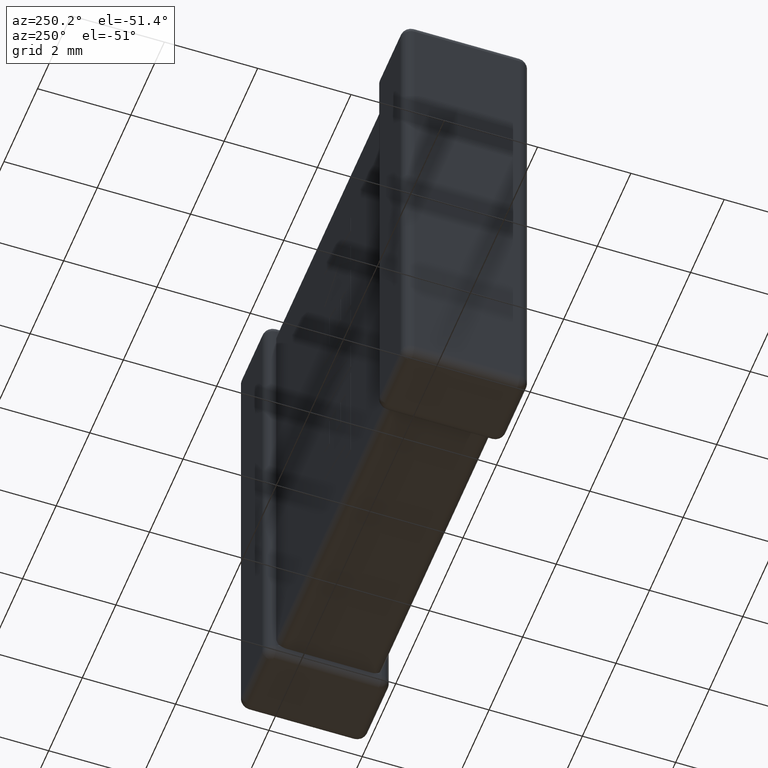
[diagram: clean part render]
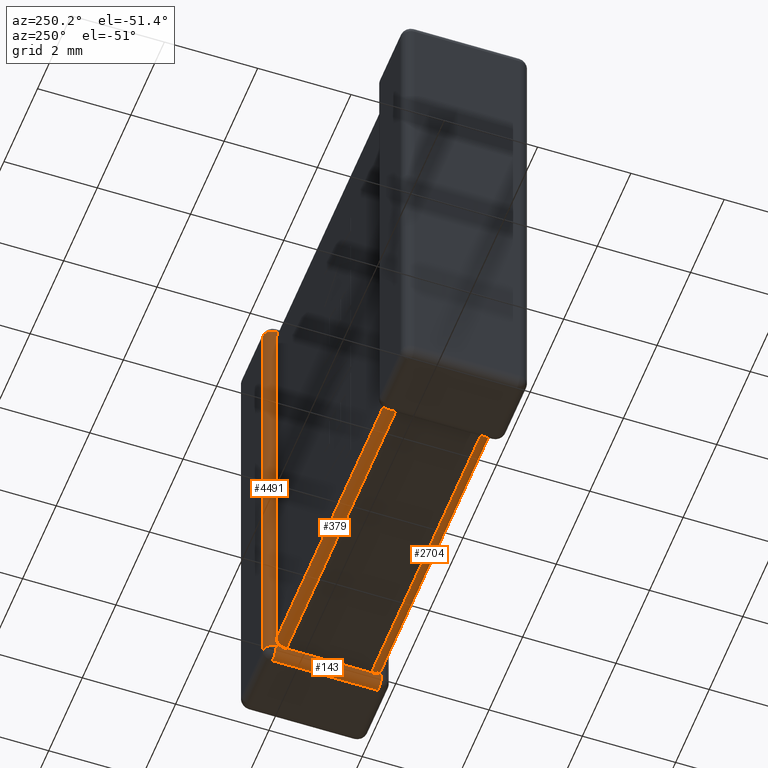
[diagram: same view with one multi-face feature highlighted, each face labeled with its STEP entity id]
A machine part, auxiliary view. The highlighted faces form ONE feature: a constant-radius fillet chain: 4 tangent blend faces with common blend radius 0.2205 mm. The faces share edges in the B-rep.
Their STEP definitions:
[1] entity #379 (Cylinder):
#40 = VERTEX_POINT ( 'NONE', #1055 ) ;
#74 = VECTOR ( 'NONE', #4499, 1000.000000000000000 ) ;
#322 = EDGE_CURVE ( 'NONE', #1423, #4113, #2975, .T. ) ;
#379 = ADVANCED_FACE ( 'NONE', ( #996 ), #953, .T. ) ;
#387 = CARTESIAN_POINT ( 'NONE',  ( 1.660330884344323632, 2.414942903116010786, -10.31494290311600892 ) ) ;
#453 = DIRECTION ( 'NONE',  ( -1.000000000000000000, -0.000000000000000000, -0.000000000000000000 ) ) ;
#480 = EDGE_CURVE ( 'NONE', #3249, #1546, #4109, .T. ) ;
#499 = CARTESIAN_POINT ( 'NONE',  ( 8.239669115655678056, 2.414942903116010342, -10.31494290311600892 ) ) ;
#519 = CARTESIAN_POINT ( 'NONE',  ( 1.669999999999999929, 2.479520000000000390, -10.15903999999999918 ) ) ;
#584 = AXIS2_PLACEMENT_3D ( 'NONE', #640, #590, #2372 ) ;
#590 = DIRECTION ( 'NONE',  ( 1.000000000000000000, 0.000000000000000000, 0.000000000000000000 ) ) ;
#640 = CARTESIAN_POINT ( 'NONE',  ( 1.669999999999999707, 2.259040000000000159, -10.15903999999999918 ) ) ;
#695 = CARTESIAN_POINT ( 'NONE',  ( 8.230000000000000426, 2.317438216622466740, -10.37951999999999941 ) ) ;
#731 = ORIENTED_EDGE ( 'NONE', *, *, #322, .F. ) ;
#906 = CARTESIAN_POINT ( 'NONE',  ( 1.670000000000000373, 2.317396345505158273, -10.37951999999999941 ) ) ;
#953 = CYLINDRICAL_SURFACE ( 'NONE', #584, 0.2204800000000003424 ) ;
#968 = B_SPLINE_CURVE_WITH_KNOTS ( 'NONE', 3,
 ( #2874, #695, #4190, #2094 ),
 .UNSPECIFIED., .F., .F.,
 ( 4, 4 ),
 ( 0.000000000000000000, 0.0001727506452289285523 ),
 .UNSPECIFIED. ) ;
#996 = FACE_OUTER_BOUND ( 'NONE', #2594, .T. ) ;
#1043 = CARTESIAN_POINT ( 'NONE',  ( 1.669999999999999929, 2.479520000000000390, -10.15903999999999918 ) ) ;
#1055 = CARTESIAN_POINT ( 'NONE',  ( 8.230000000000000426, 2.259040000000000159, -10.37951999999999941 ) ) ;
#1233 = CARTESIAN_POINT ( 'NONE',  ( 8.239669115655678056, 2.414942903116010342, -10.31494290311600892 ) ) ;
#1259 = CARTESIAN_POINT ( 'NONE',  ( 8.230000000000000426, 2.479519999999999946, -10.21739634550515952 ) ) ;
#1423 = VERTEX_POINT ( 'NONE', #387 ) ;
#1489 = CARTESIAN_POINT ( 'NONE',  ( 1.669999999999999707, 2.259040000000000159, -10.37951999999999941 ) ) ;
#1546 = VERTEX_POINT ( 'NONE', #3785 ) ;
#2094 = CARTESIAN_POINT ( 'NONE',  ( 8.239669115655678056, 2.414942903116010342, -10.31494290311600892 ) ) ;
#2108 = EDGE_CURVE ( 'NONE', #4113, #40, #3380, .T. ) ;
#2189 = EDGE_CURVE ( 'NONE', #40, #3249, #968, .T. ) ;
#2253 = CARTESIAN_POINT ( 'NONE',  ( 1.672707980145602846, 2.374538074819541489, -10.35534773141247911 ) ) ;
#2349 = ORIENTED_EDGE ( 'NONE', *, *, #2108, .F. ) ;
#2372 = DIRECTION ( 'NONE',  ( 0.000000000000000000, 0.000000000000000000, -1.000000000000000000 ) ) ;
#2396 = B_SPLINE_CURVE_WITH_KNOTS ( 'NONE', 3,
 ( #1043, #4487, #3103, #4182 ),
 .UNSPECIFIED., .F., .F.,
 ( 4, 4 ),
 ( 0.000000000000000000, 0.0001727506452289287420 ),
 .UNSPECIFIED. ) ;
#2594 = EDGE_LOOP ( 'NONE', ( #3530, #3191, #4392, #3221, #2349, #731 ) ) ;
#2716 = CARTESIAN_POINT ( 'NONE',  ( 1.669999999999999707, 2.259040000000000159, -10.37951999999999941 ) ) ;
#2749 = VERTEX_POINT ( 'NONE', #519 ) ;
#2874 = CARTESIAN_POINT ( 'NONE',  ( 8.230000000000000426, 2.259040000000000159, -10.37951999999999941 ) ) ;
#2917 = LINE ( 'NONE', #3991, #4302 ) ;
#2975 = B_SPLINE_CURVE_WITH_KNOTS ( 'NONE', 3,
 ( #4003, #2253, #906, #3320 ),
 .UNSPECIFIED., .F., .F.,
 ( 4, 4 ),
 ( 0.000000000000000000, 0.0001725559479346076169 ),
 .UNSPECIFIED. ) ;
#3021 = CARTESIAN_POINT ( 'NONE',  ( 8.227292019854397509, 2.455347731412479195, -10.27453807481954051 ) ) ;
#3103 = CARTESIAN_POINT ( 'NONE',  ( 1.672710767819503896, 2.455356831723993771, -10.27452897450909930 ) ) ;
#3191 = ORIENTED_EDGE ( 'NONE', *, *, #3217, .F. ) ;
#3217 = EDGE_CURVE ( 'NONE', #1546, #2749, #2917, .T. ) ;
#3221 = ORIENTED_EDGE ( 'NONE', *, *, #2189, .F. ) ;
#3249 = VERTEX_POINT ( 'NONE', #499 ) ;
#3320 = CARTESIAN_POINT ( 'NONE',  ( 1.669999999999999707, 2.259040000000000159, -10.37951999999999941 ) ) ;
#3380 = LINE ( 'NONE', #2716, #74 ) ;
#3530 = ORIENTED_EDGE ( 'NONE', *, *, #3689, .F. ) ;
#3689 = EDGE_CURVE ( 'NONE', #2749, #1423, #2396, .T. ) ;
#3708 = CARTESIAN_POINT ( 'NONE',  ( 8.230000000000000426, 2.479520000000000390, -10.15903999999999918 ) ) ;
#3785 = CARTESIAN_POINT ( 'NONE',  ( 8.230000000000000426, 2.479520000000000390, -10.15903999999999918 ) ) ;
#3991 = CARTESIAN_POINT ( 'NONE',  ( 1.669999999999999929, 2.479520000000000390, -10.15903999999999918 ) ) ;
#4003 = CARTESIAN_POINT ( 'NONE',  ( 1.660330884344323632, 2.414942903116010786, -10.31494290311600892 ) ) ;
#4109 = B_SPLINE_CURVE_WITH_KNOTS ( 'NONE', 3,
 ( #1233, #3021, #1259, #3708 ),
 .UNSPECIFIED., .F., .F.,
 ( 4, 4 ),
 ( 0.000000000000000000, 0.0001725559479346078066 ),
 .UNSPECIFIED. ) ;
#4113 = VERTEX_POINT ( 'NONE', #1489 ) ;
#4182 = CARTESIAN_POINT ( 'NONE',  ( 1.660330884344323632, 2.414942903116010786, -10.31494290311600892 ) ) ;
#4190 = CARTESIAN_POINT ( 'NONE',  ( 8.227289232180497791, 2.374528974509101165, -10.35535683172399324 ) ) ;
#4302 = VECTOR ( 'NONE', #453, 1000.000000000000000 ) ;
#4392 = ORIENTED_EDGE ( 'NONE', *, *, #480, .F. ) ;
#4487 = CARTESIAN_POINT ( 'NONE',  ( 1.669999999999999929, 2.479520000000000390, -10.21743821662246532 ) ) ;
#4499 = DIRECTION ( 'NONE',  ( 1.000000000000000000, 0.000000000000000000, 0.000000000000000000 ) ) ;
[2] entity #143 (Cylinder):
#25 = AXIS2_PLACEMENT_3D ( 'NONE', #323, #2520, #3901 ) ;
#40 = VERTEX_POINT ( 'NONE', #1055 ) ;
#64 = CARTESIAN_POINT ( 'NONE',  ( 8.450480000000000658, 2.479520000000000390, -10.59999999999999964 ) ) ;
#81 = CYLINDRICAL_SURFACE ( 'NONE', #1513, 0.2204800000000003424 ) ;
#143 = ADVANCED_FACE ( 'NONE', ( #2567 ), #81, .T. ) ;
#152 = DIRECTION ( 'NONE',  ( 0.000000000000000000, 0.000000000000000000, 1.000000000000000000 ) ) ;
#167 = ORIENTED_EDGE ( 'NONE', *, *, #2791, .F. ) ;
#176 = CARTESIAN_POINT ( 'NONE',  ( 8.239669115655678056, 0.2850570968839896691, -10.31494290311600892 ) ) ;
#265 = CARTESIAN_POINT ( 'NONE',  ( 8.230000000000000426, 2.479520000000000390, -10.37951999999999941 ) ) ;
#298 = VERTEX_POINT ( 'NONE', #1525 ) ;
#323 = CARTESIAN_POINT ( 'NONE',  ( 8.450480000000000658, 0.2204799999999999538, -10.37951999999999941 ) ) ;
#374 = EDGE_LOOP ( 'NONE', ( #3692, #1202, #3297, #1671, #2773, #3011, #3617, #167 ) ) ;
#485 = LINE ( 'NONE', #3384, #525 ) ;
#499 = CARTESIAN_POINT ( 'NONE',  ( 8.239669115655678056, 2.414942903116010342, -10.31494290311600892 ) ) ;
#525 = VECTOR ( 'NONE', #1566, 1000.000000000000000 ) ;
#541 = EDGE_CURVE ( 'NONE', #298, #4098, #2574, .T. ) ;
#636 = EDGE_CURVE ( 'NONE', #999, #2344, #1550, .T. ) ;
#695 = CARTESIAN_POINT ( 'NONE',  ( 8.230000000000000426, 2.317438216622466740, -10.37951999999999941 ) ) ;
#763 = CARTESIAN_POINT ( 'NONE',  ( 8.230000000000000426, 0.4409599999999990194, -10.37951999999999941 ) ) ;
#807 = DIRECTION ( 'NONE',  ( 0.000000000000000000, 1.000000000000000000, 0.000000000000000000 ) ) ;
#924 = DIRECTION ( 'NONE',  ( -0.000000000000000000, -1.000000000000000000, -0.000000000000000000 ) ) ;
#968 = B_SPLINE_CURVE_WITH_KNOTS ( 'NONE', 3,
 ( #2874, #695, #4190, #2094 ),
 .UNSPECIFIED., .F., .F.,
 ( 4, 4 ),
 ( 0.000000000000000000, 0.0001727506452289285523 ),
 .UNSPECIFIED. ) ;
#997 = CARTESIAN_POINT ( 'NONE',  ( 8.230000000000000426, 0.2204799999999990379, -10.37951999999999941 ) ) ;
#999 = VERTEX_POINT ( 'NONE', #1714 ) ;
#1026 = VERTEX_POINT ( 'NONE', #763 ) ;
#1055 = CARTESIAN_POINT ( 'NONE',  ( 8.230000000000000426, 2.259040000000000159, -10.37951999999999941 ) ) ;
#1062 = CARTESIAN_POINT ( 'NONE',  ( 8.239669115655678056, 2.414942903116010342, -10.31494290311600892 ) ) ;
#1202 = ORIENTED_EDGE ( 'NONE', *, *, #4178, .F. ) ;
#1241 = EDGE_CURVE ( 'NONE', #2344, #1026, #4214, .T. ) ;
#1311 = CARTESIAN_POINT ( 'NONE',  ( 8.233246902157560498, 0.2640918851864371142, -10.33590811481356297 ) ) ;
#1513 = AXIS2_PLACEMENT_3D ( 'NONE', #3965, #807, #152 ) ;
#1525 = CARTESIAN_POINT ( 'NONE',  ( 8.230000000000000426, 2.479520000000000390, -10.37951999999999941 ) ) ;
#1550 =( BOUNDED_CURVE ( )  B_SPLINE_CURVE ( 3, ( #997, #4481, #1311, #4138 ),
 .UNSPECIFIED., .F., .T. ) 
 B_SPLINE_CURVE_WITH_KNOTS ( ( 4, 4 ),
 ( 1.570796326794894560, 1.868047688116102556 ),
 .UNSPECIFIED. ) 
 CURVE ( )  GEOMETRIC_REPRESENTATION_ITEM ( )  RATIONAL_B_SPLINE_CURVE ( ( 1.000000000000000000, 0.9926503465430337458, 0.9926503465430337458, 1.000000000000000000 ) ) 
 REPRESENTATION_ITEM ( '' )  );
#1566 = DIRECTION ( 'NONE',  ( 0.000000000000000000, 1.000000000000000000, 0.000000000000000000 ) ) ;
#1663 = CARTESIAN_POINT ( 'NONE',  ( 8.227292019854397509, 0.3254619251804586333, -10.35534773141247911 ) ) ;
#1671 = ORIENTED_EDGE ( 'NONE', *, *, #636, .T. ) ;
#1698 = CARTESIAN_POINT ( 'NONE',  ( 8.233246902157562275, 2.435908114813562619, -10.33590811481356297 ) ) ;
#1714 = CARTESIAN_POINT ( 'NONE',  ( 8.230000000000000426, 0.2204799999999990379, -10.37951999999999941 ) ) ;
#2017 = LINE ( 'NONE', #3064, #3006 ) ;
#2094 = CARTESIAN_POINT ( 'NONE',  ( 8.239669115655678056, 2.414942903116010342, -10.31494290311600892 ) ) ;
#2189 = EDGE_CURVE ( 'NONE', #40, #3249, #968, .T. ) ;
#2264 = EDGE_CURVE ( 'NONE', #999, #3636, #3512, .T. ) ;
#2311 = DIRECTION ( 'NONE',  ( -0.000000000000000000, 1.000000000000000000, -0.000000000000000000 ) ) ;
#2314 = CARTESIAN_POINT ( 'NONE',  ( 8.450480000000000658, 2.479520000000000390, -10.37951999999999941 ) ) ;
#2344 = VERTEX_POINT ( 'NONE', #3676 ) ;
#2520 = DIRECTION ( 'NONE',  ( -0.000000000000000000, -1.000000000000000000, -0.000000000000000000 ) ) ;
#2567 = FACE_OUTER_BOUND ( 'NONE', #374, .T. ) ;
#2574 = CIRCLE ( 'NONE', #3757, 0.2204800000000003424 ) ;
#2773 = ORIENTED_EDGE ( 'NONE', *, *, #1241, .T. ) ;
#2774 = CARTESIAN_POINT ( 'NONE',  ( 8.450480000000000658, 0.2204799999999999538, -10.59999999999999964 ) ) ;
#2791 = EDGE_CURVE ( 'NONE', #298, #3249, #2814, .T. ) ;
#2814 =( BOUNDED_CURVE ( )  B_SPLINE_CURVE ( 3, ( #265, #2985, #1698, #1062 ),
 .UNSPECIFIED., .F., .T. ) 
 B_SPLINE_CURVE_WITH_KNOTS ( ( 4, 4 ),
 ( 1.570796326794896558, 1.868047688116103444 ),
 .UNSPECIFIED. ) 
 CURVE ( )  GEOMETRIC_REPRESENTATION_ITEM ( )  RATIONAL_B_SPLINE_CURVE ( ( 1.000000000000000000, 0.9926503465430338569, 0.9926503465430338569, 1.000000000000000000 ) ) 
 REPRESENTATION_ITEM ( '' )  );
#2874 = CARTESIAN_POINT ( 'NONE',  ( 8.230000000000000426, 2.259040000000000159, -10.37951999999999941 ) ) ;
#2985 = CARTESIAN_POINT ( 'NONE',  ( 8.230000000000000426, 2.457593191574271696, -10.35759319157427427 ) ) ;
#3006 = VECTOR ( 'NONE', #2311, 1000.000000000000000 ) ;
#3011 = ORIENTED_EDGE ( 'NONE', *, *, #3345, .T. ) ;
#3064 = CARTESIAN_POINT ( 'NONE',  ( 8.230000000000000426, 0.000000000000000000, -10.37951999999999941 ) ) ;
#3088 = CARTESIAN_POINT ( 'NONE',  ( 8.230000000000000426, 0.3826036544948412943, -10.37951999999999941 ) ) ;
#3249 = VERTEX_POINT ( 'NONE', #499 ) ;
#3297 = ORIENTED_EDGE ( 'NONE', *, *, #2264, .F. ) ;
#3336 = DIRECTION ( 'NONE',  ( 0.000000000000000000, 0.000000000000000000, 1.000000000000000000 ) ) ;
#3345 = EDGE_CURVE ( 'NONE', #1026, #40, #2017, .T. ) ;
#3384 = CARTESIAN_POINT ( 'NONE',  ( 8.450480000000000658, 0.000000000000000000, -10.59999999999999964 ) ) ;
#3512 = CIRCLE ( 'NONE', #25, 0.2204800000000003424 ) ;
#3617 = ORIENTED_EDGE ( 'NONE', *, *, #2189, .T. ) ;
#3636 = VERTEX_POINT ( 'NONE', #2774 ) ;
#3676 = CARTESIAN_POINT ( 'NONE',  ( 8.239669115655678056, 0.2850570968839896691, -10.31494290311600892 ) ) ;
#3692 = ORIENTED_EDGE ( 'NONE', *, *, #541, .T. ) ;
#3757 = AXIS2_PLACEMENT_3D ( 'NONE', #2314, #924, #3336 ) ;
#3901 = DIRECTION ( 'NONE',  ( 0.000000000000000000, 0.000000000000000000, -1.000000000000000000 ) ) ;
#3965 = CARTESIAN_POINT ( 'NONE',  ( 8.450480000000000658, 0.000000000000000000, -10.37951999999999941 ) ) ;
#4098 = VERTEX_POINT ( 'NONE', #64 ) ;
#4138 = CARTESIAN_POINT ( 'NONE',  ( 8.239669115655678056, 0.2850570968839896691, -10.31494290311600892 ) ) ;
#4178 = EDGE_CURVE ( 'NONE', #3636, #4098, #485, .T. ) ;
#4190 = CARTESIAN_POINT ( 'NONE',  ( 8.227289232180497791, 2.374528974509101165, -10.35535683172399324 ) ) ;
#4214 = B_SPLINE_CURVE_WITH_KNOTS ( 'NONE', 3,
 ( #176, #1663, #3088, #4473 ),
 .UNSPECIFIED., .F., .F.,
 ( 4, 4 ),
 ( 0.000000000000000000, 0.0001725559479346070206 ),
 .UNSPECIFIED. ) ;
#4473 = CARTESIAN_POINT ( 'NONE',  ( 8.230000000000000426, 0.4409599999999990194, -10.37951999999999941 ) ) ;
#4481 = CARTESIAN_POINT ( 'NONE',  ( 8.230000000000000426, 0.2424068084257280653, -10.35759319157427072 ) ) ;
[3] entity #2704 (Cylinder):
#176 = CARTESIAN_POINT ( 'NONE',  ( 8.239669115655678056, 0.2850570968839896691, -10.31494290311600892 ) ) ;
#391 = ORIENTED_EDGE ( 'NONE', *, *, #1589, .F. ) ;
#442 = VECTOR ( 'NONE', #4153, 1000.000000000000000 ) ;
#455 = EDGE_CURVE ( 'NONE', #655, #3913, #593, .T. ) ;
#494 = ORIENTED_EDGE ( 'NONE', *, *, #1842, .F. ) ;
#498 = CARTESIAN_POINT ( 'NONE',  ( 8.230000000000000426, 0.2204799999999990379, -10.15903999999999918 ) ) ;
#593 = B_SPLINE_CURVE_WITH_KNOTS ( 'NONE', 3,
 ( #1334, #4156, #3823, #659 ),
 .UNSPECIFIED., .F., .F.,
 ( 4, 4 ),
 ( 0.000000000000000000, 0.0001725559479346051774 ),
 .UNSPECIFIED. ) ;
#655 = VERTEX_POINT ( 'NONE', #3528 ) ;
#659 = CARTESIAN_POINT ( 'NONE',  ( 1.669999999999999929, 0.2204799999999990379, -10.15903999999999918 ) ) ;
#739 = CARTESIAN_POINT ( 'NONE',  ( 8.230000000000000426, 0.2204799999999990379, -10.15903999999999918 ) ) ;
#763 = CARTESIAN_POINT ( 'NONE',  ( 8.230000000000000426, 0.4409599999999990194, -10.37951999999999941 ) ) ;
#771 = AXIS2_PLACEMENT_3D ( 'NONE', #862, #4463, #4095 ) ;
#862 = CARTESIAN_POINT ( 'NONE',  ( 1.669999999999999929, 0.4409599999999990194, -10.15903999999999918 ) ) ;
#1026 = VERTEX_POINT ( 'NONE', #763 ) ;
#1076 = B_SPLINE_CURVE_WITH_KNOTS ( 'NONE', 3,
 ( #3701, #1557, #4366, #2309 ),
 .UNSPECIFIED., .F., .F.,
 ( 4, 4 ),
 ( 0.000000000000000000, 0.0001727506452289311544 ),
 .UNSPECIFIED. ) ;
#1102 = ORIENTED_EDGE ( 'NONE', *, *, #1241, .F. ) ;
#1154 = CYLINDRICAL_SURFACE ( 'NONE', #771, 0.2204800000000003424 ) ;
#1241 = EDGE_CURVE ( 'NONE', #2344, #1026, #4214, .T. ) ;
#1334 = CARTESIAN_POINT ( 'NONE',  ( 1.660330884344325408, 0.2850570968839872266, -10.31494290311600714 ) ) ;
#1411 = EDGE_CURVE ( 'NONE', #3913, #2804, #1774, .T. ) ;
#1486 = ORIENTED_EDGE ( 'NONE', *, *, #1411, .F. ) ;
#1503 = B_SPLINE_CURVE_WITH_KNOTS ( 'NONE', 3,
 ( #498, #2236, #1509, #2541 ),
 .UNSPECIFIED., .F., .F.,
 ( 4, 4 ),
 ( 0.000000000000000000, 0.0001727506452289290673 ),
 .UNSPECIFIED. ) ;
#1509 = CARTESIAN_POINT ( 'NONE',  ( 8.227289232180497791, 0.2446431682760057125, -10.27452897450909930 ) ) ;
#1557 = CARTESIAN_POINT ( 'NONE',  ( 1.669999999999999707, 0.3825617833775318832, -10.37951999999999941 ) ) ;
#1589 = EDGE_CURVE ( 'NONE', #3754, #655, #1076, .T. ) ;
#1663 = CARTESIAN_POINT ( 'NONE',  ( 8.227292019854397509, 0.3254619251804586333, -10.35534773141247911 ) ) ;
#1720 = ORIENTED_EDGE ( 'NONE', *, *, #455, .F. ) ;
#1774 = LINE ( 'NONE', #739, #4263 ) ;
#1842 = EDGE_CURVE ( 'NONE', #1026, #3754, #3119, .T. ) ;
#2236 = CARTESIAN_POINT ( 'NONE',  ( 8.230000000000000426, 0.2204799999999990379, -10.21743821662246532 ) ) ;
#2309 = CARTESIAN_POINT ( 'NONE',  ( 1.660330884344325408, 0.2850570968839872266, -10.31494290311600714 ) ) ;
#2344 = VERTEX_POINT ( 'NONE', #3676 ) ;
#2416 = EDGE_CURVE ( 'NONE', #2804, #2344, #1503, .T. ) ;
#2541 = CARTESIAN_POINT ( 'NONE',  ( 8.239669115655678056, 0.2850570968839896691, -10.31494290311600892 ) ) ;
#2605 = EDGE_LOOP ( 'NONE', ( #391, #494, #1102, #2693, #1486, #1720 ) ) ;
#2693 = ORIENTED_EDGE ( 'NONE', *, *, #2416, .F. ) ;
#2704 = ADVANCED_FACE ( 'NONE', ( #2937 ), #1154, .T. ) ;
#2804 = VERTEX_POINT ( 'NONE', #4223 ) ;
#2937 = FACE_OUTER_BOUND ( 'NONE', #2605, .T. ) ;
#3088 = CARTESIAN_POINT ( 'NONE',  ( 8.230000000000000426, 0.3826036544948412943, -10.37951999999999941 ) ) ;
#3119 = LINE ( 'NONE', #4505, #442 ) ;
#3528 = CARTESIAN_POINT ( 'NONE',  ( 1.660330884344325408, 0.2850570968839872266, -10.31494290311600714 ) ) ;
#3561 = DIRECTION ( 'NONE',  ( 1.000000000000000000, 0.000000000000000000, -0.000000000000000000 ) ) ;
#3676 = CARTESIAN_POINT ( 'NONE',  ( 8.239669115655678056, 0.2850570968839896691, -10.31494290311600892 ) ) ;
#3701 = CARTESIAN_POINT ( 'NONE',  ( 1.669999999999999707, 0.4409599999999990194, -10.37951999999999941 ) ) ;
#3754 = VERTEX_POINT ( 'NONE', #3936 ) ;
#3823 = CARTESIAN_POINT ( 'NONE',  ( 1.670000000000000817, 0.2204799999999995097, -10.21739634550515774 ) ) ;
#3848 = CARTESIAN_POINT ( 'NONE',  ( 1.669999999999999929, 0.2204799999999990379, -10.15903999999999918 ) ) ;
#3913 = VERTEX_POINT ( 'NONE', #3848 ) ;
#3936 = CARTESIAN_POINT ( 'NONE',  ( 1.669999999999999707, 0.4409599999999990194, -10.37951999999999941 ) ) ;
#4095 = DIRECTION ( 'NONE',  ( 0.000000000000000000, 0.000000000000000000, 1.000000000000000000 ) ) ;
#4153 = DIRECTION ( 'NONE',  ( -1.000000000000000000, 0.000000000000000000, -0.000000000000000000 ) ) ;
#4156 = CARTESIAN_POINT ( 'NONE',  ( 1.672707980145603734, 0.2446522685875190117, -10.27453807481953874 ) ) ;
#4214 = B_SPLINE_CURVE_WITH_KNOTS ( 'NONE', 3,
 ( #176, #1663, #3088, #4473 ),
 .UNSPECIFIED., .F., .F.,
 ( 4, 4 ),
 ( 0.000000000000000000, 0.0001725559479346070206 ),
 .UNSPECIFIED. ) ;
#4223 = CARTESIAN_POINT ( 'NONE',  ( 8.230000000000000426, 0.2204799999999990379, -10.15903999999999918 ) ) ;
#4263 = VECTOR ( 'NONE', #3561, 1000.000000000000000 ) ;
#4366 = CARTESIAN_POINT ( 'NONE',  ( 1.672710767819506783, 0.3254710254908962930, -10.35535683172399146 ) ) ;
#4463 = DIRECTION ( 'NONE',  ( -1.000000000000000000, 0.000000000000000000, 0.000000000000000000 ) ) ;
#4473 = CARTESIAN_POINT ( 'NONE',  ( 8.230000000000000426, 0.4409599999999990194, -10.37951999999999941 ) ) ;
#4505 = CARTESIAN_POINT ( 'NONE',  ( 1.669999999999999929, 0.4409599999999990194, -10.37951999999999941 ) ) ;
[4] entity #4491 (Cylinder):
#93 = DIRECTION ( 'NONE',  ( -1.598175372177922995E-15, 0.000000000000000000, 1.000000000000000000 ) ) ;
#159 = DIRECTION ( 'NONE',  ( -1.000000000000000000, 0.000000000000000000, 0.000000000000000000 ) ) ;
#177 = CARTESIAN_POINT ( 'NONE',  ( 8.230000000000000426, 2.479520000000000390, -10.59999999999999964 ) ) ;
#181 = EDGE_LOOP ( 'NONE', ( #2647, #3545, #4456, #1878, #3406, #2470, #3198, #1683 ) ) ;
#187 = B_SPLINE_CURVE_WITH_KNOTS ( 'NONE', 3,
 ( #271, #196, #4471, #4052 ),
 .UNSPECIFIED., .F., .F.,
 ( 4, 4 ),
 ( 0.000000000000000000, 0.0001727506452289285252 ),
 .UNSPECIFIED. ) ;
#196 = CARTESIAN_POINT ( 'NONE',  ( 8.230000000000000426, 2.479520000000000390, -0.3825617833775343257 ) ) ;
#265 = CARTESIAN_POINT ( 'NONE',  ( 8.230000000000000426, 2.479520000000000390, -10.37951999999999941 ) ) ;
#271 = CARTESIAN_POINT ( 'NONE',  ( 8.230000000000000426, 2.479520000000000390, -0.4409600000000006848 ) ) ;
#289 = CARTESIAN_POINT ( 'NONE',  ( 8.230000000000000426, 2.479520000000000390, -0.2204800000000003424 ) ) ;
#298 = VERTEX_POINT ( 'NONE', #1525 ) ;
#337 = CARTESIAN_POINT ( 'NONE',  ( 8.450480000000000658, 2.479520000000000390, 0.000000000000000000 ) ) ;
#480 = EDGE_CURVE ( 'NONE', #3249, #1546, #4109, .T. ) ;
#499 = CARTESIAN_POINT ( 'NONE',  ( 8.239669115655678056, 2.414942903116010342, -10.31494290311600892 ) ) ;
#502 = AXIS2_PLACEMENT_3D ( 'NONE', #2202, #3613, #159 ) ;
#747 = EDGE_CURVE ( 'NONE', #298, #3192, #2506, .T. ) ;
#792 = CARTESIAN_POINT ( 'NONE',  ( 8.230000000000000426, 2.479520000000000390, -0.2204800000000003424 ) ) ;
#1062 = CARTESIAN_POINT ( 'NONE',  ( 8.239669115655678056, 2.414942903116010342, -10.31494290311600892 ) ) ;
#1071 = CARTESIAN_POINT ( 'NONE',  ( 8.450480000000000658, 2.700000000000000178, -0.2204799999999999816 ) ) ;
#1204 = CYLINDRICAL_SURFACE ( 'NONE', #2378, 0.2204800000000003424 ) ;
#1233 = CARTESIAN_POINT ( 'NONE',  ( 8.239669115655678056, 2.414942903116010342, -10.31494290311600892 ) ) ;
#1259 = CARTESIAN_POINT ( 'NONE',  ( 8.230000000000000426, 2.479519999999999946, -10.21739634550515952 ) ) ;
#1387 = VERTEX_POINT ( 'NONE', #4211 ) ;
#1389 = CARTESIAN_POINT ( 'NONE',  ( 8.233246902157562275, 2.435908114813562619, -0.2640918851864377803 ) ) ;
#1476 = LINE ( 'NONE', #1500, #4382 ) ;
#1500 = CARTESIAN_POINT ( 'NONE',  ( 8.450480000000000658, 2.700000000000000178, 0.000000000000000000 ) ) ;
#1525 = CARTESIAN_POINT ( 'NONE',  ( 8.230000000000000426, 2.479520000000000390, -10.37951999999999941 ) ) ;
#1546 = VERTEX_POINT ( 'NONE', #3785 ) ;
#1683 = ORIENTED_EDGE ( 'NONE', *, *, #3716, .F. ) ;
#1698 = CARTESIAN_POINT ( 'NONE',  ( 8.233246902157562275, 2.435908114813562619, -10.33590811481356297 ) ) ;
#1722 = DIRECTION ( 'NONE',  ( -0.000000000000000000, 0.000000000000000000, 1.000000000000000000 ) ) ;
#1812 = AXIS2_PLACEMENT_3D ( 'NONE', #2961, #93, #3621 ) ;
#1878 = ORIENTED_EDGE ( 'NONE', *, *, #2791, .T. ) ;
#2028 = EDGE_CURVE ( 'NONE', #1546, #2794, #2263, .T. ) ;
#2092 = VECTOR ( 'NONE', #4285, 1000.000000000000000 ) ;
#2202 = CARTESIAN_POINT ( 'NONE',  ( 8.450480000000000658, 2.479520000000000390, -10.37951999999999941 ) ) ;
#2233 = DIRECTION ( 'NONE',  ( -0.000000000000000000, 0.000000000000000000, 1.000000000000000000 ) ) ;
#2256 = CIRCLE ( 'NONE', #1812, 0.2204800000000003424 ) ;
#2263 = LINE ( 'NONE', #177, #2092 ) ;
#2378 = AXIS2_PLACEMENT_3D ( 'NONE', #337, #1722, #3131 ) ;
#2464 = CARTESIAN_POINT ( 'NONE',  ( 8.239669115655678056, 2.414942903116010342, -0.2850570968839904462 ) ) ;
#2470 = ORIENTED_EDGE ( 'NONE', *, *, #2028, .T. ) ;
#2506 = CIRCLE ( 'NONE', #502, 0.2204800000000003424 ) ;
#2647 = ORIENTED_EDGE ( 'NONE', *, *, #2666, .F. ) ;
#2666 = EDGE_CURVE ( 'NONE', #4289, #4108, #2256, .T. ) ;
#2695 = EDGE_CURVE ( 'NONE', #3192, #4289, #1476, .T. ) ;
#2730 =( BOUNDED_CURVE ( )  B_SPLINE_CURVE ( 3, ( #289, #4162, #1389, #2464 ),
 .UNSPECIFIED., .F., .T. ) 
 B_SPLINE_CURVE_WITH_KNOTS ( ( 4, 4 ),
 ( 1.570796326794896558, 1.868047688116103444 ),
 .UNSPECIFIED. ) 
 CURVE ( )  GEOMETRIC_REPRESENTATION_ITEM ( )  RATIONAL_B_SPLINE_CURVE ( ( 1.000000000000000000, 0.9926503465430338569, 0.9926503465430338569, 1.000000000000000000 ) ) 
 REPRESENTATION_ITEM ( '' )  );
#2791 = EDGE_CURVE ( 'NONE', #298, #3249, #2814, .T. ) ;
#2794 = VERTEX_POINT ( 'NONE', #3828 ) ;
#2814 =( BOUNDED_CURVE ( )  B_SPLINE_CURVE ( 3, ( #265, #2985, #1698, #1062 ),
 .UNSPECIFIED., .F., .T. ) 
 B_SPLINE_CURVE_WITH_KNOTS ( ( 4, 4 ),
 ( 1.570796326794896558, 1.868047688116103444 ),
 .UNSPECIFIED. ) 
 CURVE ( )  GEOMETRIC_REPRESENTATION_ITEM ( )  RATIONAL_B_SPLINE_CURVE ( ( 1.000000000000000000, 0.9926503465430338569, 0.9926503465430338569, 1.000000000000000000 ) ) 
 REPRESENTATION_ITEM ( '' )  );
#2961 = CARTESIAN_POINT ( 'NONE',  ( 8.450480000000000658, 2.479520000000000390, -0.2204799999999999816 ) ) ;
#2985 = CARTESIAN_POINT ( 'NONE',  ( 8.230000000000000426, 2.457593191574271696, -10.35759319157427427 ) ) ;
#3021 = CARTESIAN_POINT ( 'NONE',  ( 8.227292019854397509, 2.455347731412479195, -10.27453807481954051 ) ) ;
#3131 = DIRECTION ( 'NONE',  ( 1.000000000000000000, 0.000000000000000000, 0.000000000000000000 ) ) ;
#3192 = VERTEX_POINT ( 'NONE', #4256 ) ;
#3198 = ORIENTED_EDGE ( 'NONE', *, *, #3379, .T. ) ;
#3249 = VERTEX_POINT ( 'NONE', #499 ) ;
#3379 = EDGE_CURVE ( 'NONE', #2794, #1387, #187, .T. ) ;
#3406 = ORIENTED_EDGE ( 'NONE', *, *, #480, .T. ) ;
#3545 = ORIENTED_EDGE ( 'NONE', *, *, #2695, .F. ) ;
#3613 = DIRECTION ( 'NONE',  ( 0.000000000000000000, 0.000000000000000000, -1.000000000000000000 ) ) ;
#3621 = DIRECTION ( 'NONE',  ( 1.000000000000000000, 0.000000000000000000, 1.598175372177922601E-15 ) ) ;
#3708 = CARTESIAN_POINT ( 'NONE',  ( 8.230000000000000426, 2.479520000000000390, -10.15903999999999918 ) ) ;
#3716 = EDGE_CURVE ( 'NONE', #4108, #1387, #2730, .T. ) ;
#3785 = CARTESIAN_POINT ( 'NONE',  ( 8.230000000000000426, 2.479520000000000390, -10.15903999999999918 ) ) ;
#3828 = CARTESIAN_POINT ( 'NONE',  ( 8.230000000000000426, 2.479520000000000390, -0.4409600000000006848 ) ) ;
#4048 = FACE_OUTER_BOUND ( 'NONE', #181, .T. ) ;
#4052 = CARTESIAN_POINT ( 'NONE',  ( 8.239669115655678056, 2.414942903116010342, -0.2850570968839904462 ) ) ;
#4108 = VERTEX_POINT ( 'NONE', #792 ) ;
#4109 = B_SPLINE_CURVE_WITH_KNOTS ( 'NONE', 3,
 ( #1233, #3021, #1259, #3708 ),
 .UNSPECIFIED., .F., .F.,
 ( 4, 4 ),
 ( 0.000000000000000000, 0.0001725559479346078066 ),
 .UNSPECIFIED. ) ;
#4162 = CARTESIAN_POINT ( 'NONE',  ( 8.230000000000000426, 2.457593191574271696, -0.2424068084257288702 ) ) ;
#4211 = CARTESIAN_POINT ( 'NONE',  ( 8.239669115655678056, 2.414942903116010342, -0.2850570968839904462 ) ) ;
#4256 = CARTESIAN_POINT ( 'NONE',  ( 8.450480000000000658, 2.700000000000000178, -10.37951999999999941 ) ) ;
#4285 = DIRECTION ( 'NONE',  ( -0.000000000000000000, -0.000000000000000000, 1.000000000000000000 ) ) ;
#4289 = VERTEX_POINT ( 'NONE', #1071 ) ;
#4382 = VECTOR ( 'NONE', #2233, 1000.000000000000000 ) ;
#4456 = ORIENTED_EDGE ( 'NONE', *, *, #747, .F. ) ;
#4471 = CARTESIAN_POINT ( 'NONE',  ( 8.227289232180497791, 2.455356831723993771, -0.3254710254908985134 ) ) ;
#4491 = ADVANCED_FACE ( 'NONE', ( #4048 ), #1204, .T. ) ;